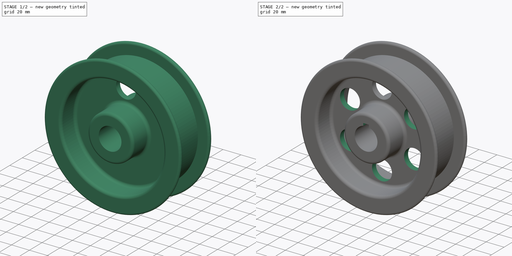
[diagram: build sequence overview — one tinted view per stage of 2, left to right]
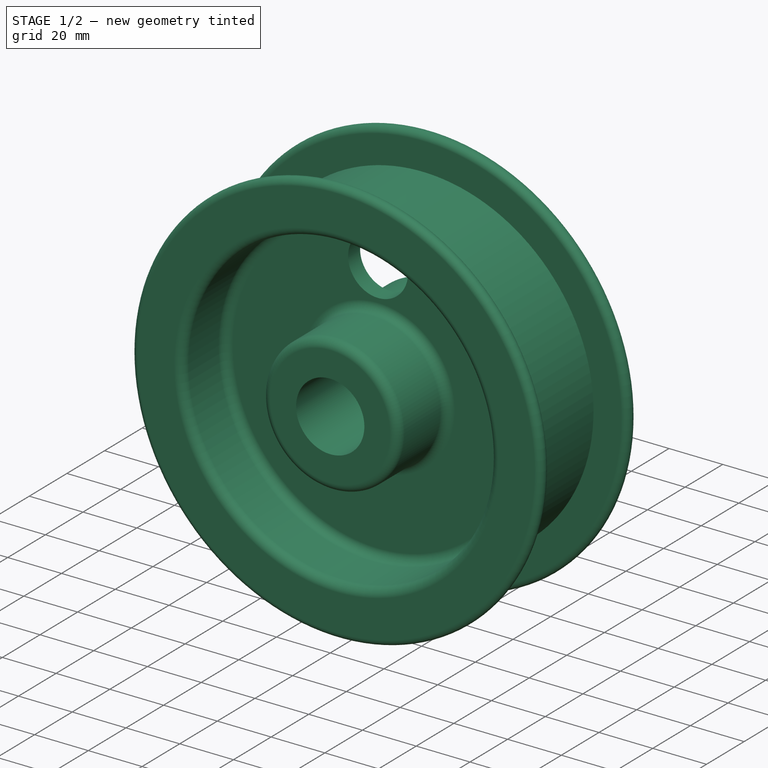
[diagram: stage 1 of 2 — iso view after this stage's code; geometry added in this stage tinted green]
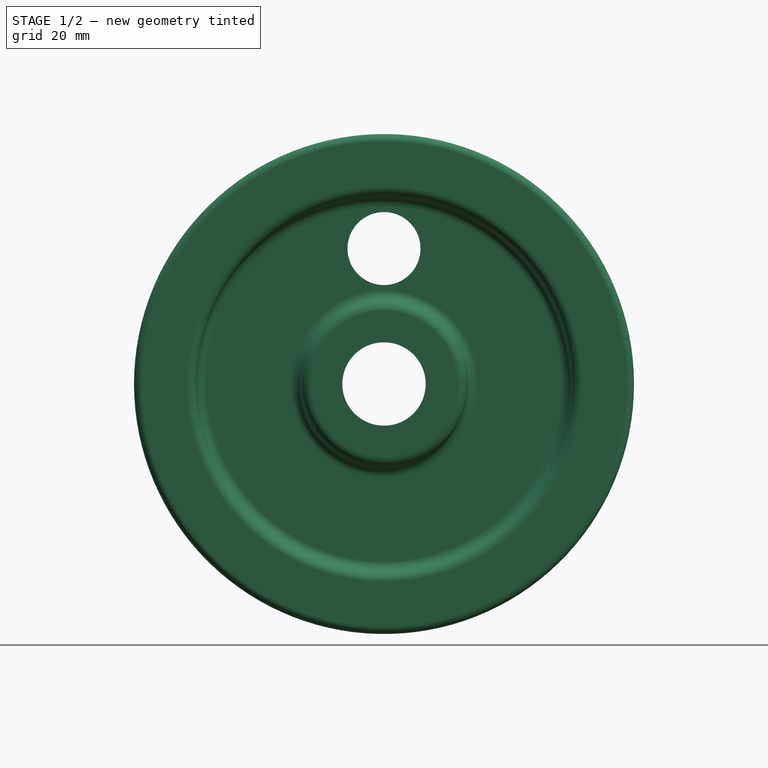
[diagram: stage 1 of 2 — front view after this stage's code; geometry added in this stage tinted green]
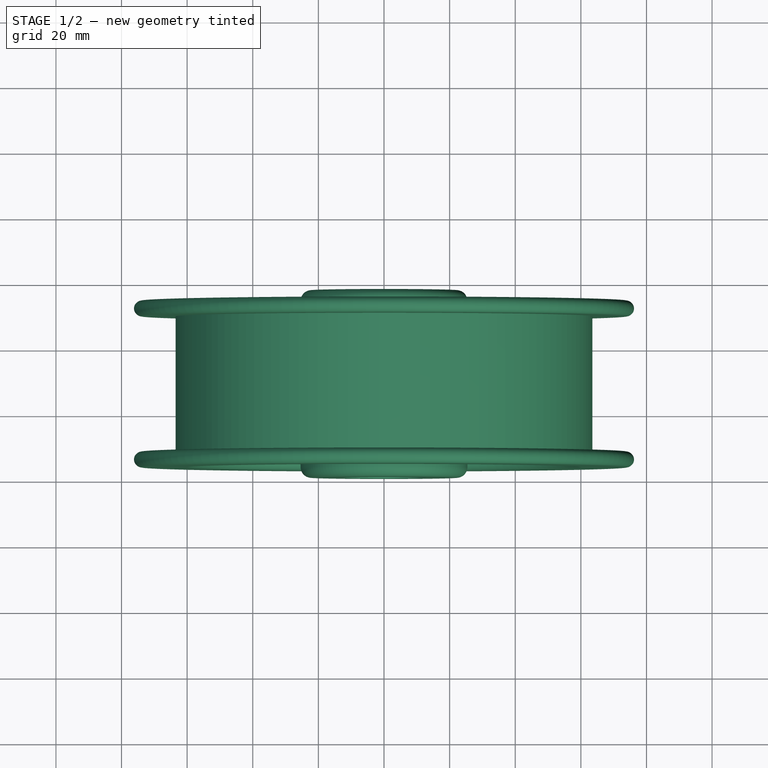
[diagram: stage 1 of 2 — top view after this stage's code; geometry added in this stage tinted green]
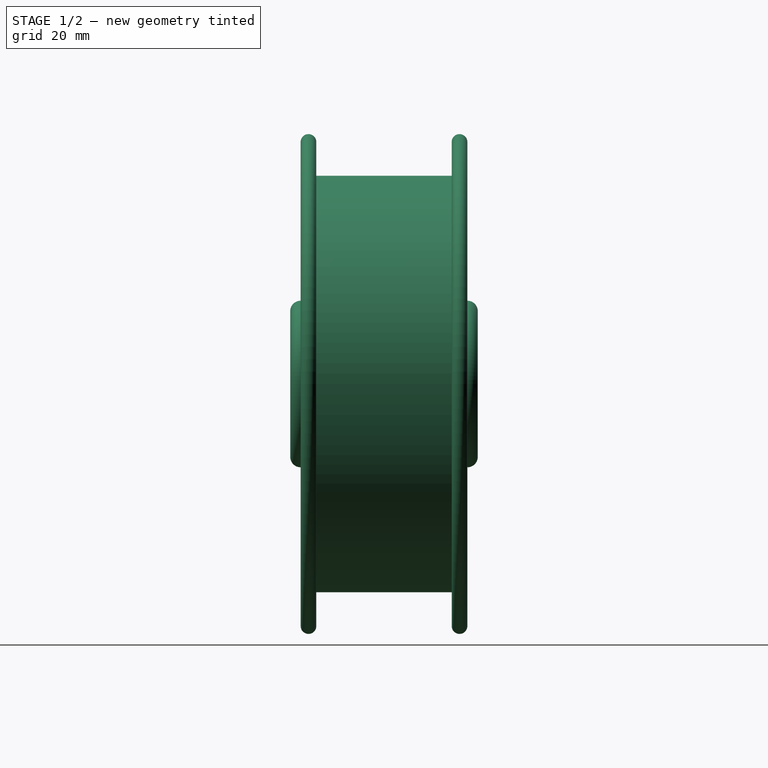
[diagram: stage 1 of 2 — right view after this stage's code; geometry added in this stage tinted green]
FCSTD DOCUMENT  (FreeCAD 0.16R6712 (Git))
Label: POLIA
License: All rights reserved
LicenseURL: http://en.wikipedia.org/wiki/All_rights_reserved
objects: Sketcher::SketchObject×3, PartDesign::Pocket×2, PartDesign::Revolution×1, PartDesign::PolarPattern×1
note: 10 computed .brp shape members not serialized (recipe doc carries the construction recipe); baked Part::Feature solids carry a one-line shape summary decoded from their .brp

FEATURE [Sketcher::SketchObject] Sketch001
  sketch-geometry (24):
    g0: LineSegment StartX=12.7 StartY=57.15 StartZ=0 EndX=22.225 EndY=57.15 EndZ=0
    g1: LineSegment StartX=25.4 StartY=53.975 StartZ=0 EndX=25.4 EndY=34.925 EndZ=0
    g2: LineSegment StartX=28.575 StartY=31.75 StartZ=0 EndX=53.975 EndY=31.75 EndZ=0
    g3: LineSegment StartX=57.15 StartY=34.925 StartZ=0 EndX=57.15 EndY=50.8 EndZ=0
    g4: LineSegment StartX=60.325 StartY=53.975 StartZ=0 EndX=73.8187 EndY=53.975 EndZ=0
    g5: ArcOfCircle CenterX=73.8187 CenterY=51.5938 CenterZ=0 NormalX=0 NormalY=0 NormalZ=1 Radius=2.38125 StartAngle=4.71239 EndAngle=7.85398
    g6: LineSegment StartX=73.8187 StartY=49.2125 StartZ=0 EndX=63.5 EndY=49.2125 EndZ=0
    g7: LineSegment StartX=63.5 StartY=49.2125 StartZ=0 EndX=63.5 EndY=7.9375 EndZ=0
    g8: LineSegment StartX=63.5 StartY=7.9375 StartZ=0 EndX=73.8187 EndY=7.9375 EndZ=0
    g9: ArcOfCircle CenterX=73.8187 CenterY=5.55625 CenterZ=0 NormalX=0 NormalY=0 NormalZ=1 Radius=2.38125 StartAngle=4.71239 EndAngle=7.85398
    g10: LineSegment StartX=73.8187 StartY=3.175 StartZ=0 EndX=60.325 EndY=3.175 EndZ=0
    g11: LineSegment StartX=57.15 StartY=6.35 StartZ=0 EndX=57.15 EndY=22.225 EndZ=0
    g12: LineSegment StartX=53.975 StartY=25.4 StartZ=0 EndX=28.575 EndY=25.4 EndZ=0
    g13: LineSegment StartX=25.4 StartY=22.225 StartZ=0 EndX=25.4 EndY=3.175 EndZ=0
    g14: LineSegment StartX=22.225 StartY=0 StartZ=0 EndX=12.7 EndY=0 EndZ=0
    g15: ArcOfCircle CenterX=22.225 CenterY=3.175 CenterZ=0 NormalX=0 NormalY=0 NormalZ=1 Radius=3.175 StartAngle=4.71239 EndAngle=6.28319
    g16: ArcOfCircle CenterX=28.575 CenterY=22.225 CenterZ=0 NormalX=0 NormalY=0 NormalZ=1 Radius=3.175 StartAngle=1.5708 EndAngle=3.14159
    g17: ArcOfCircle CenterX=53.975 CenterY=22.225 CenterZ=0 NormalX=0 NormalY=0 NormalZ=1 Radius=3.175 StartAngle=0 EndAngle=1.5708
    g18: ArcOfCircle CenterX=60.325 CenterY=6.35 CenterZ=0 NormalX=0 NormalY=0 NormalZ=1 Radius=3.175 StartAngle=3.14159 EndAngle=4.71239
    g19: ArcOfCircle CenterX=22.225 CenterY=53.975 CenterZ=0 NormalX=0 NormalY=0 NormalZ=1 Radius=3.175 StartAngle=0 EndAngle=1.5708
    g20: ArcOfCircle CenterX=28.575 CenterY=34.925 CenterZ=0 NormalX=0 NormalY=0 NormalZ=1 Radius=3.175 StartAngle=3.14159 EndAngle=4.71239
    g21: ArcOfCircle CenterX=60.325 CenterY=50.8 CenterZ=0 NormalX=0 NormalY=0 NormalZ=1 Radius=3.175 StartAngle=1.5708 EndAngle=3.14159
    g22: ArcOfCircle CenterX=53.975 CenterY=34.925 CenterZ=0 NormalX=0 NormalY=0 NormalZ=1 Radius=3.175 StartAngle=4.71239 EndAngle=6.28319
    g23: LineSegment StartX=12.7 StartY=57.15 StartZ=0 EndX=12.7 EndY=0 EndZ=0
  constraints (63):
    c: Horizontal(g0)
    c: Vertical(g1)
    c: Horizontal(g2)
    c: Vertical(g3)
    c: Horizontal(g4)
    c: Tangent(g4,g5) = 1.5708
    c: Tangent(g5,g6) = 1.5708
    c: Coincident(g6,g7)
    c: Coincident(g7,g8)
    c: Horizontal(g8)
    c: Tangent(g8,g9) = 1.5708
    c: Tangent(g9,g10) = 1.5708
    c: Vertical(g11)
    c: Horizontal(g12)
    c: Vertical(g13)
    c: Horizontal(g14)
    c: Horizontal(g10)
    c: Horizontal(g6)
    c: Tangent(g13,g15) = 1.5708
    c: Tangent(g14,g15) = 1.5708
    c: Tangent(g12,g16) = -1.5708
    c: Tangent(g13,g16) = -1.5708
    c: Tangent(g11,g17) = -1.5708
    c: Tangent(g12,g17) = -1.5708
    c: Tangent(g10,g18) = 1.5708
    c: Tangent(g11,g18) = 1.5708
    c: Tangent(g0,g19) = 1.5708
    c: Tangent(g1,g19) = 1.5708
    c: Tangent(g1,g20) = -1.5708
    c: Tangent(g2,g20) = -1.5708
    c: Tangent(g3,g21) = 1.5708
    c: Tangent(g4,g21) = 1.5708
    c: Tangent(g2,g22) = -1.5708
    c: Tangent(g3,g22) = -1.5708
    c: Equal(g0,g14)
    c: Equal(g1,g13)
    c: Equal(g2,g12)
    c: Equal(g16,g20)
    c: Equal(g15,g19)
    c: Equal(g17,g22)
    c: Equal(g10,g4)
    c: Equal(g5,g9)
    c: Vertical(g7)
    c: Equal(g4,g21)
    c: Equal(g21,g18)
    c: DistanceX(g11,g7) = 6.35
    c: DistanceY(g12,g2) = 6.35
    c: Equal(g15,g16)
    c: Radius(g15) = 3.175
    c: Equal(g3,g11)
    c: Radius(g5) = 2.38125
    c: Coincident(g23,g14)
    c: Coincident(g23,g0)
    c: Vertical(g23)
    c: DistanceX(g-1,g14) = 12.7
    c: DistanceX(g14,g13) = 12.7
    c: DistanceX(g13,g11) = 31.75
    c: DistanceX(g-1,g9) = 73.8187
    c: DistanceY(g14,g12) = 25.4
    c: DistanceY(g8,g5) = 41.275
    c: Equal(g15,g18)
    c: Equal(g17,g18)
    c: DistanceY(g14,g-1) = 0
FEATURE [PartDesign::Revolution] Revolution
  Angle = 360
  Axis = (0,1,0)
  Base = (0,0,0)
  ReferenceAxis = -> Sketch001 [V_Axis]
  Reversed = true
  Sketch = -> Sketch001
FEATURE [Sketcher::SketchObject] Sketch
  Placement = pos=(0,25.4,0) rot=(1,0,0;1.5708rad)
  Support = -> Revolution [Face19]
  sketch-geometry (1):
    g0: Circle CenterX=0 CenterY=41.275 CenterZ=0 NormalX=0 NormalY=0 NormalZ=1 Radius=11.125
  constraints (3):
    c: DistanceY(g-1,g0) = 41.275
    c: DistanceX(g0,g-1) = 0
    c: Radius(g0) = 11.125
FEATURE [PartDesign::Pocket] Pocket
  Length = 5
  Sketch = -> Sketch
  Type = 1
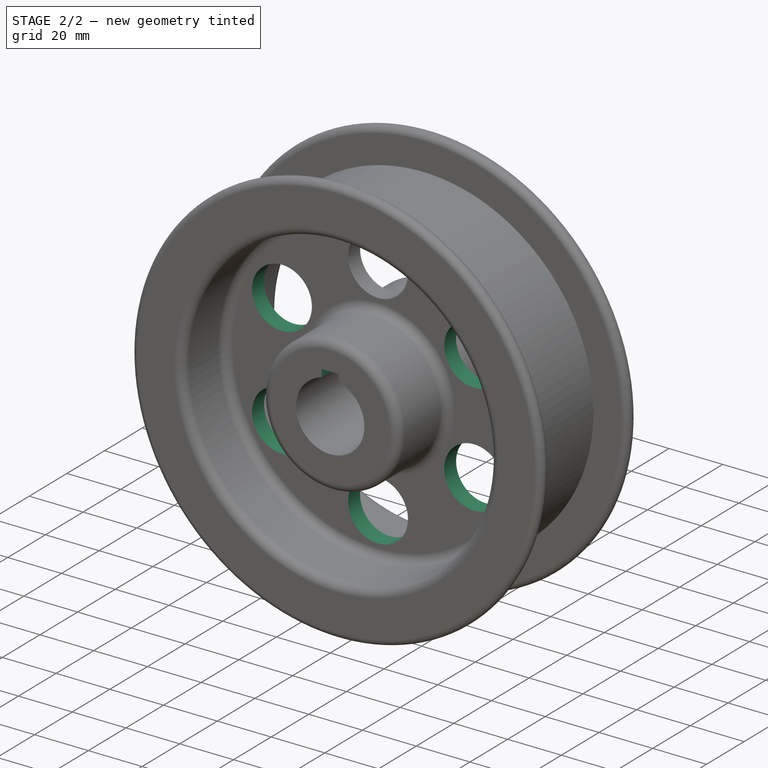
[diagram: stage 2 of 2 — iso view after this stage's code; geometry added in this stage tinted green]
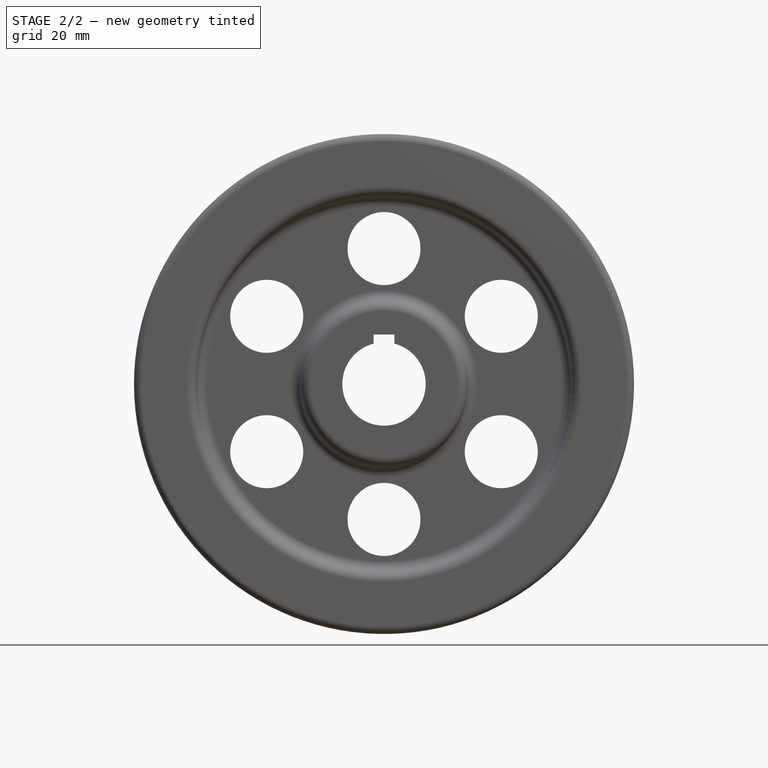
[diagram: stage 2 of 2 — front view after this stage's code; geometry added in this stage tinted green]
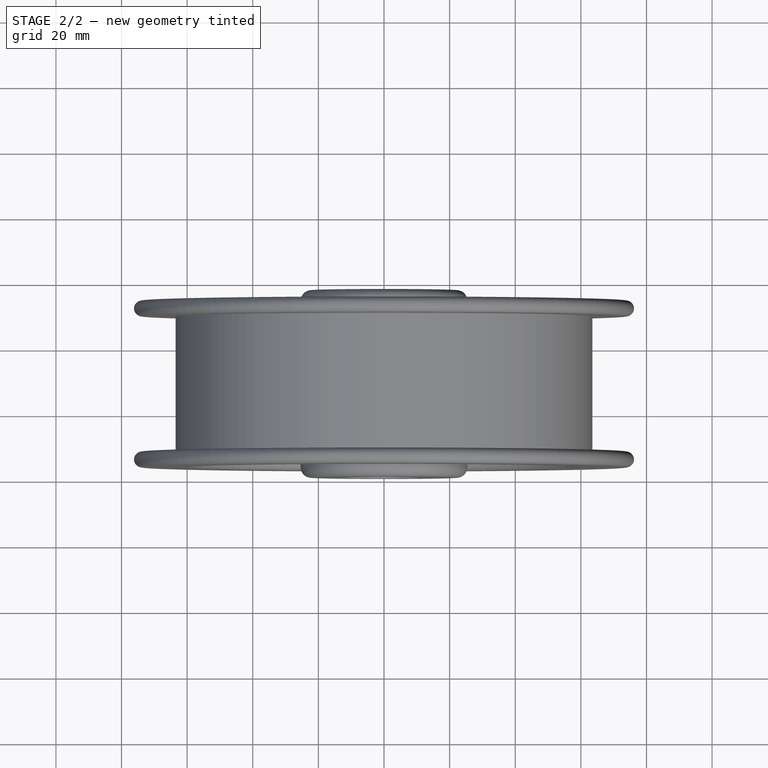
[diagram: stage 2 of 2 — top view after this stage's code; geometry added in this stage tinted green]
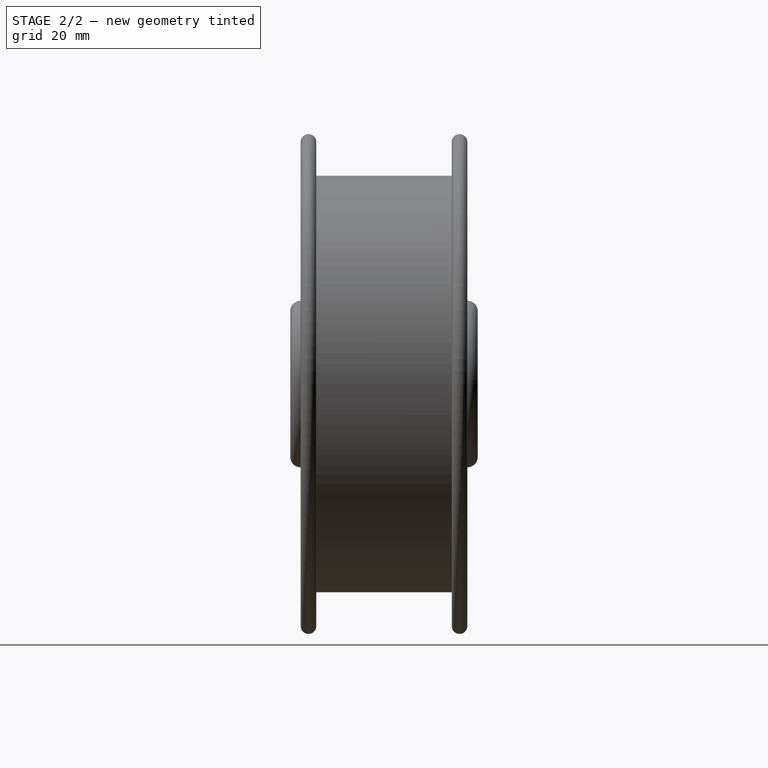
[diagram: stage 2 of 2 — right view after this stage's code; geometry added in this stage tinted green]
FEATURE [PartDesign::PolarPattern] PolarPattern
  Angle = 360
  Axis = -> Sketch [N_Axis]
  Occurrences = 6
  Originals = -> [Pocket]
FEATURE [Sketcher::SketchObject] Sketch002
  Placement = pos=(0,0,0) rot=(1,0,0;1.5708rad)
  Support = -> PolarPattern [Face4]
  sketch-geometry (4):
    g0: LineSegment StartX=-3.175 StartY=15.1061 StartZ=0 EndX=3.175 EndY=15.1061 EndZ=0
    g1: LineSegment StartX=3.175 StartY=15.1061 StartZ=0 EndX=3.175 EndY=11.9311 EndZ=0
    g2: LineSegment StartX=3.175 StartY=11.9311 StartZ=0 EndX=-3.175 EndY=11.9311 EndZ=0
    g3: LineSegment StartX=-3.175 StartY=11.9311 StartZ=0 EndX=-3.175 EndY=15.1061 EndZ=0
  constraints (11):
    c: Coincident(g0,g1)
    c: Coincident(g1,g2)
    c: Coincident(g2,g3)
    c: Coincident(g3,g0)
    c: Horizontal(g0)
    c: Horizontal(g2)
    c: Vertical(g1)
    c: Vertical(g3)
    c: Symmetric(g0,g0,g-2)
    c: DistanceY(g1,g1) = 3.175
    c: DistanceX(g2,g2) = 6.35
FEATURE [PartDesign::Pocket] Pocket001
  Length = 5
  Sketch = -> Sketch002
  Type = 1
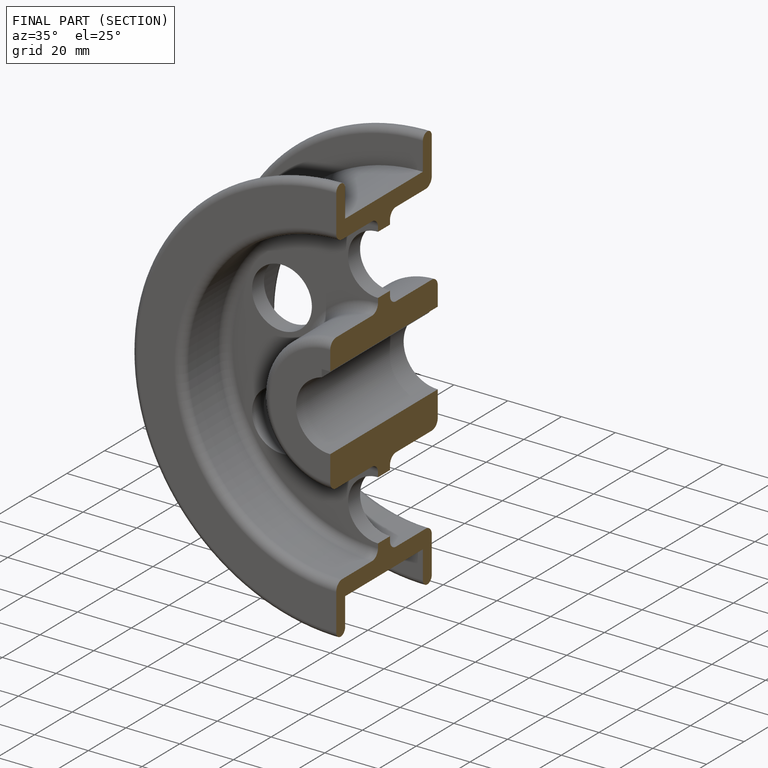
[diagram: finished part — half-section view (interior)]
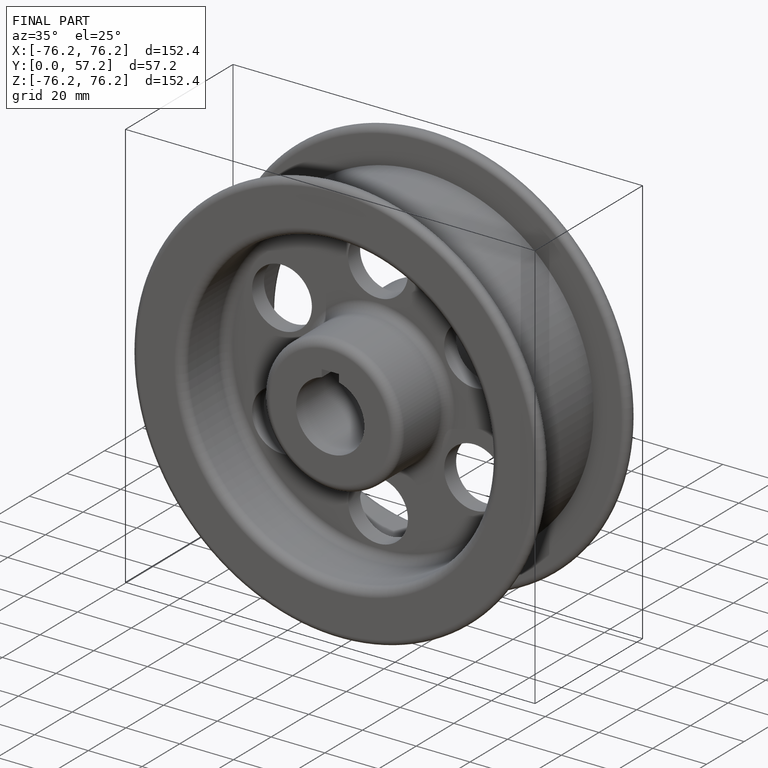
[diagram: finished part — iso view with bounding-box wireframe]
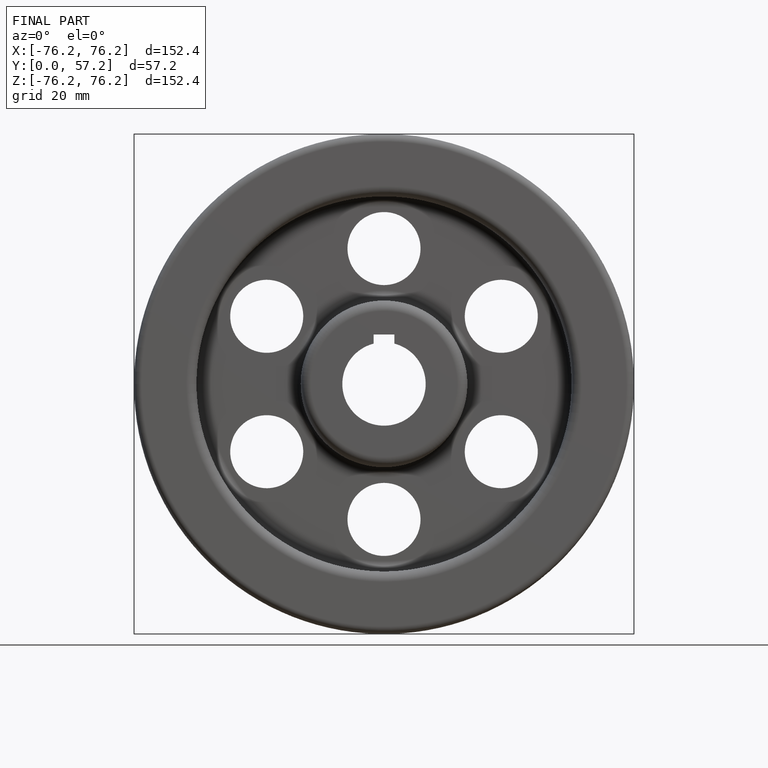
[diagram: finished part — front view with bounding-box wireframe]
